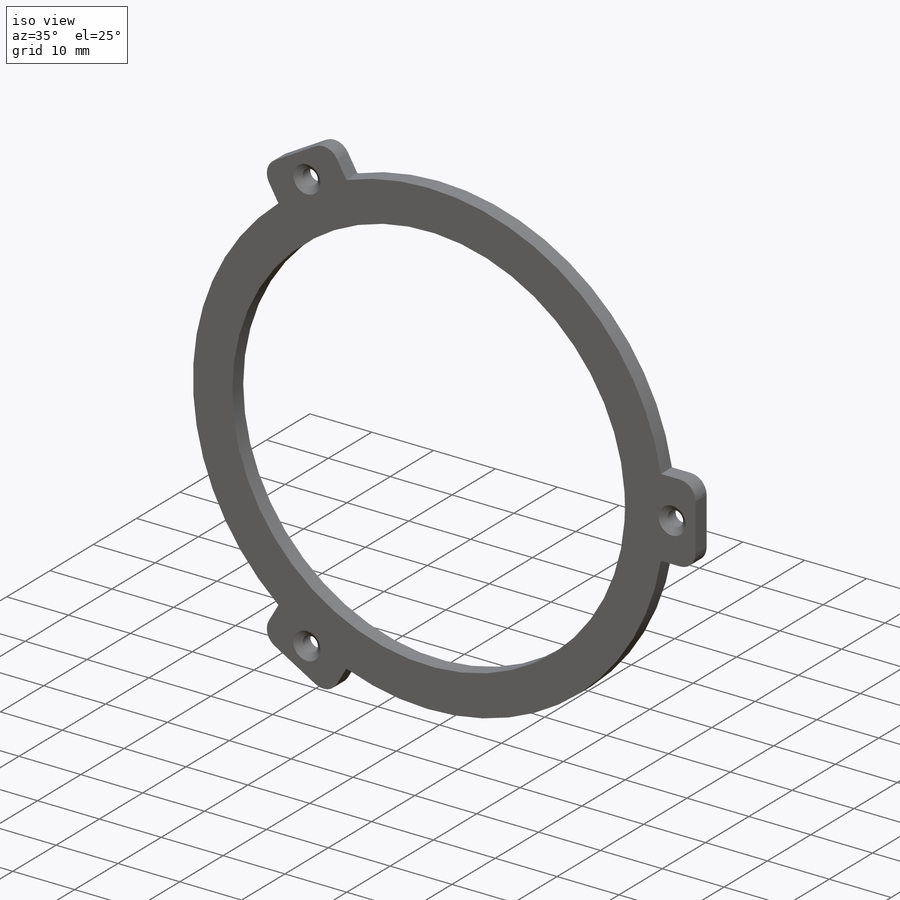
[diagram: iso view]
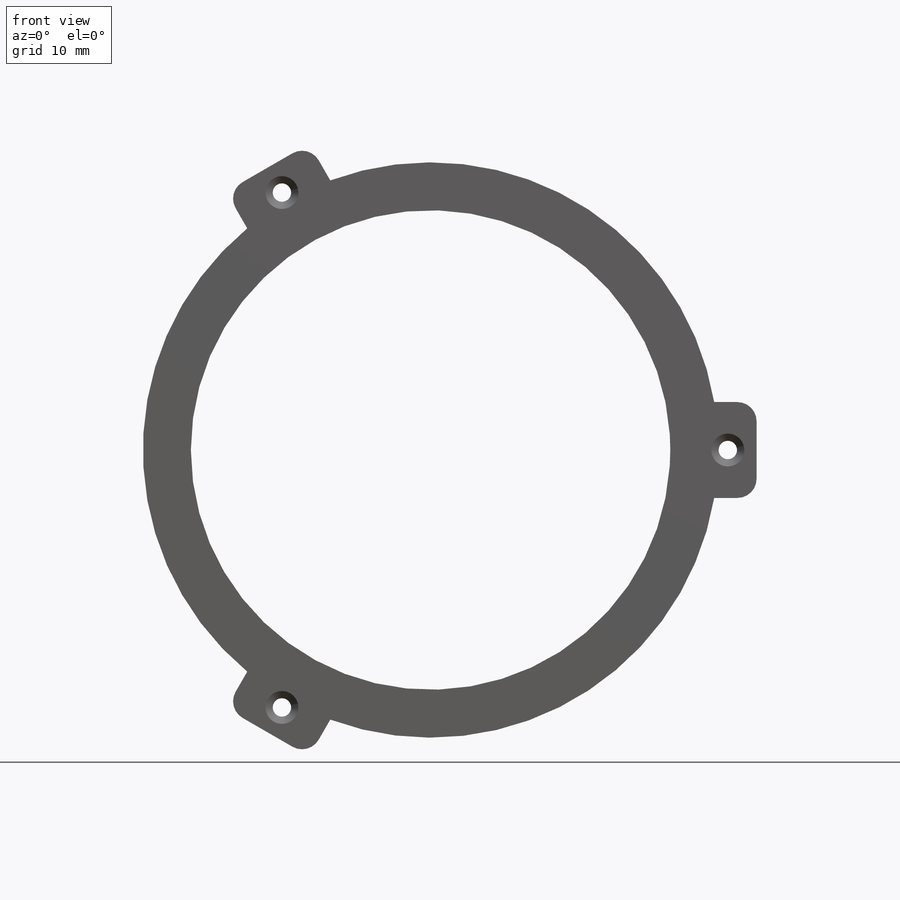
[diagram: front view]
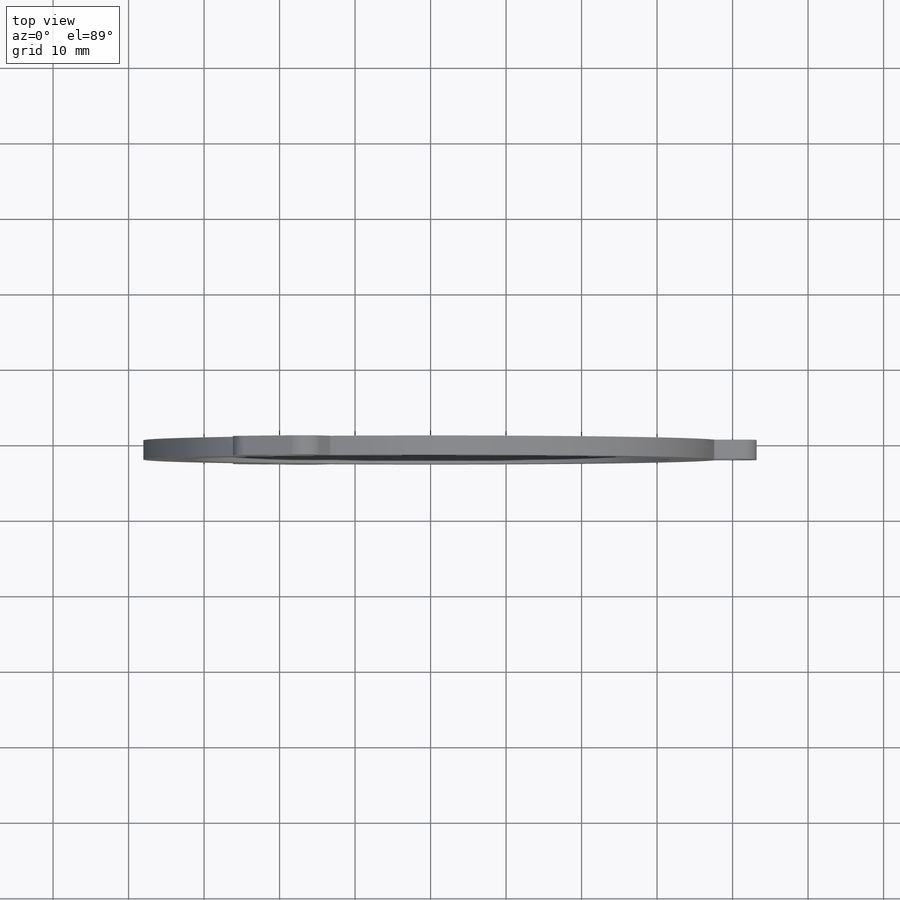
[diagram: top view]
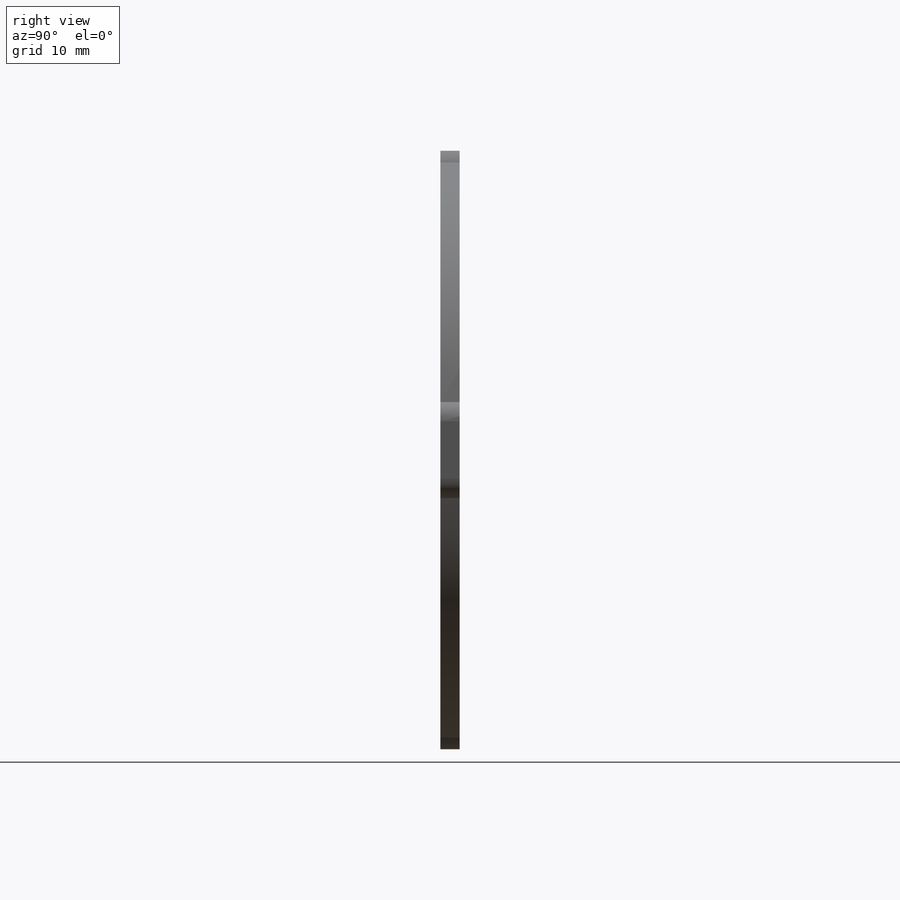
[diagram: right view]
SOLIDWORKS PART (.sldprt)
format: sldprt  version: not decoded by parser v0  size: 257,536 bytes
history: native  units: mm
features: sketch x6, extrude x2, cut_extrude x2, material x1, fillet x1, hole x1, pattern_circular x1 (+14 scaffold rows collapsed)
feature tree (28):
  scaffold x14  (default folders/planes/origin — collapsed)
  material  "Material <not specified>"
  sketch  "Sketch1"  dims[D2=76.2mm D1=6.35mm]
  extrude  "Boss-Extrude1"  Depth=2.54mm
  sketch  "Sketch2"  dims[D1=12.7mm D2=6.35mm D3=43.18mm D4=10.16mm]
  extrude  "Boss-Extrude2"  Depth=2.54mm
  fillet  "Fillet1"  Radius=2.54mm
  sketch  "Sketch3"  dims[D2=1.27mm D1=39.37mm]
  cut_extrude  "Cut-Extrude1"  [1 undecoded]
  hole  "CSK for #2 Flat Head Machine Screw (100)1"  Diameter=2.4384mm Depth=2.54mm
  sketch  "Sketch5"
  sketch  "Sketch4"  dims[hole-wizard template sketch: 55 standard entries collapsed; hole parameters kept: c17.Thru Hole Depth=2.54mm c17.Near C'Sink Dia.=4.3688mm c17.D4=~3.666174mm c17.Near C'Sink Angle=100.0deg]
  pattern_circular  "CirPattern1"  Count=3 Angle=360deg
  sketch  "Sketch6"  dims[D2=73.9394mm D1=2.2352mm]
  cut_extrude  "Cut-Extrude3"  Depth=1.27mm
decode coverage: 11 of 13 modeling features carry decoded parameters
note: ~ marks probable driven/reference dimensions
note: 1 parameter value undecoded
note: suppression state not decoded; provenance and decode notes live in map.json
